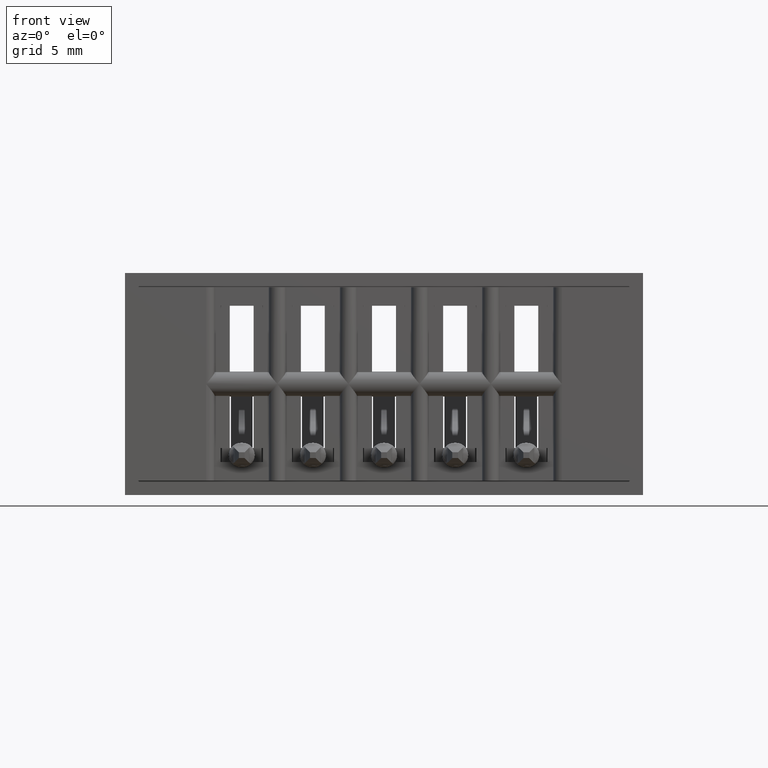
[diagram: clean part render]
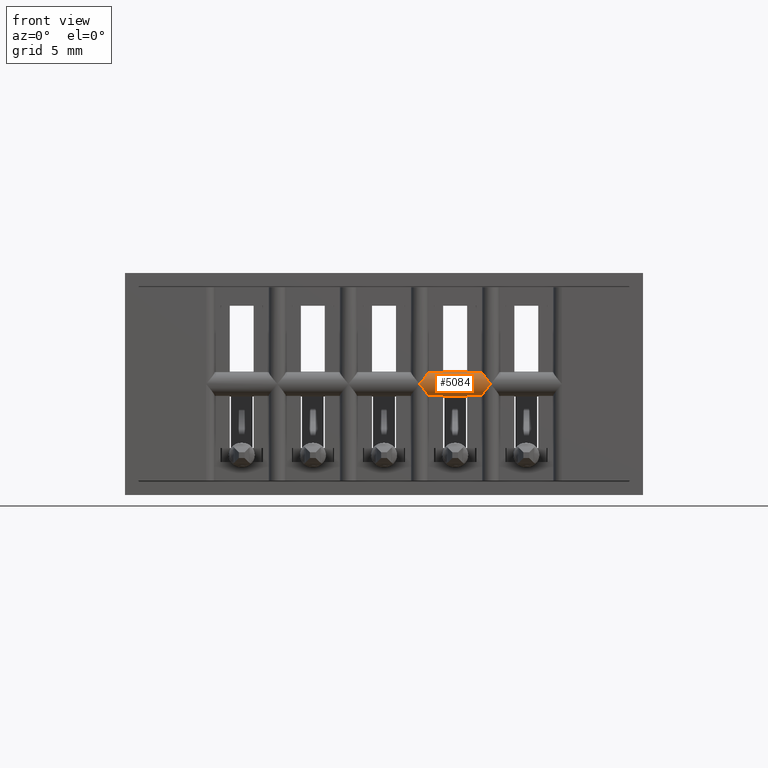
[diagram: same view with one face highlighted and labeled with its STEP entity id]
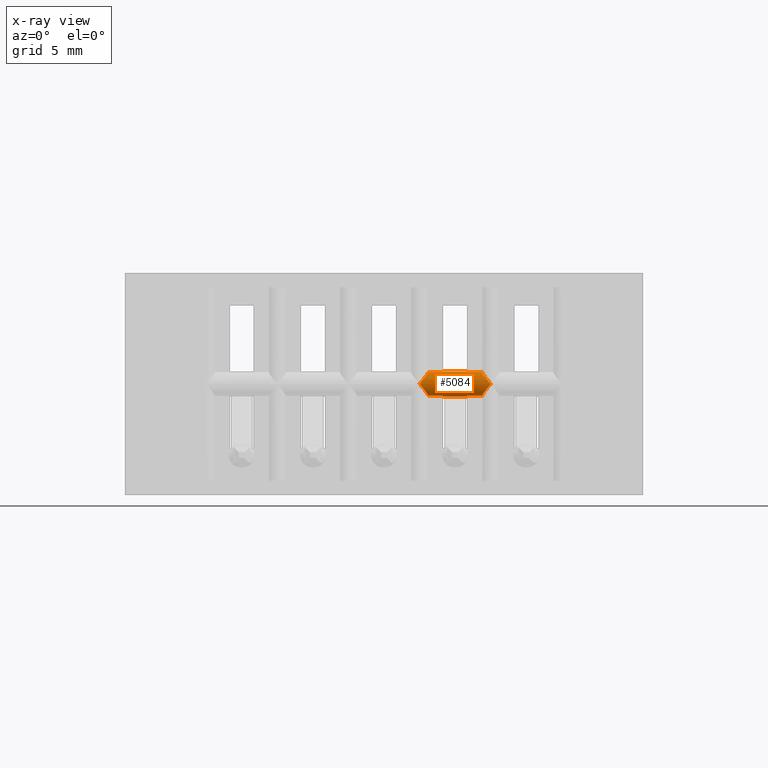
[diagram: x-ray of the same camera — body ghosted, the highlighted face saturated]
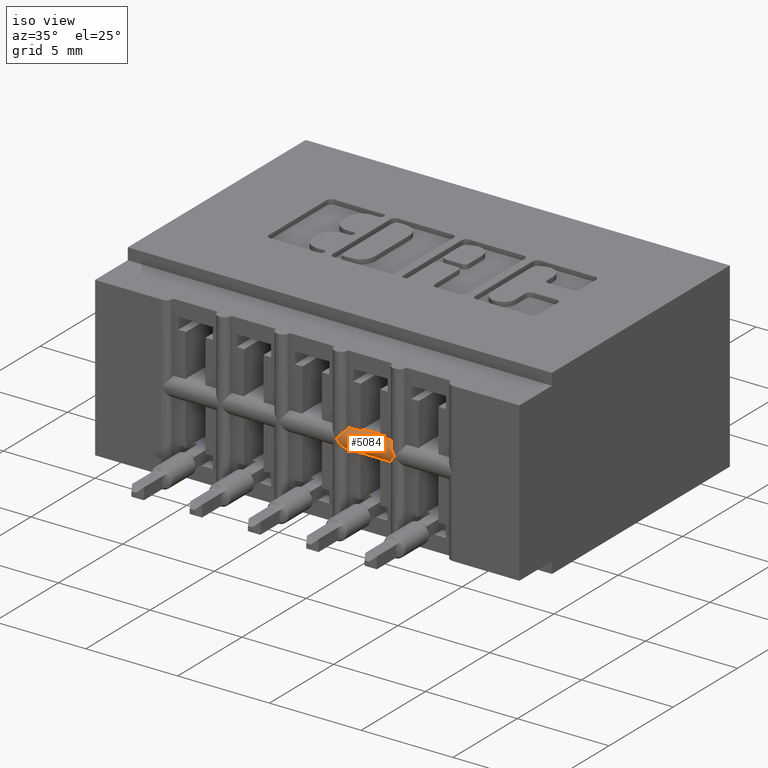
[diagram: same view with one face highlighted and labeled with its STEP entity id]
A machine part, front view. The second image highlights one B-rep face of the part: STEP entity #5084.
The next image is the same camera in x-ray: the body ghosted, the highlighted face saturated — about 0% of this face is hidden behind the body in this view.
A second angle (iso view) of the same face is appended — the face is thin or edge-on in the first view.
In plain terms, the highlighted cylindrical surface (edge-blend (fillet) strip) has radius 0.5588 mm, axis along (1, 0, -0).
Its self-contained STEP definition (entity closure, byte-faithful):
#62 = ORIENTED_EDGE ( 'NONE', *, *, #3000, .F. ) ;
#124 = VECTOR ( 'NONE', #3854, 39.37007874015748143 ) ;
#187 = CARTESIAN_POINT ( 'NONE',  ( 0.6391399462884576055, -1.365590519293842513E-17, -0.1909307627898295390 ) ) ;
#196 = VECTOR ( 'NONE', #11174, 39.37007874015748143 ) ;
#229 = CARTESIAN_POINT ( 'NONE',  ( -19685.03937007874265, 0.01499999999999989536, -0.2158566536100716693 ) ) ;
#338 = CARTESIAN_POINT ( 'NONE',  ( 0.6009999999999996456, 0.01499999999999997169, -0.2158566536146137582 ) ) ;
#613 = LINE ( 'NONE', #4825, #124 ) ;
#622 = ORIENTED_EDGE ( 'NONE', *, *, #10145, .F. ) ;
#623 = VERTEX_POINT ( 'NONE', #4096 ) ;
#635 = CARTESIAN_POINT ( 'NONE',  ( 0.5208739981909346062, -1.087136774822448878E-17, -0.1990861248552253659 ) ) ;
#739 = DIRECTION ( 'NONE',  ( 0.0000000000000000000, 0.0000000000000000000, -1.000000000000000000 ) ) ;
#949 = VERTEX_POINT ( 'NONE', #3023 ) ;
#1064 = LINE ( 'NONE', #4118, #8375 ) ;
#1145 = CARTESIAN_POINT ( 'NONE',  ( 0.5324999999999997513, 0.01499999999999997169, -0.2158566536146137582 ) ) ;
#1459 = CARTESIAN_POINT ( 'NONE',  ( 0.6274999999999996136, 0.01499999999999997516, -0.1741433463853853669 ) ) ;
#1525 = LINE ( 'NONE', #2752, #10889 ) ;
#1926 = B_SPLINE_CURVE_WITH_KNOTS ( 'NONE', 3,
 ( #5575, #11595, #3634, #3820, #7721, #3693, #11721, #7785 ),
 .UNSPECIFIED., .F., .F.,
 ( 4, 2, 2, 4 ),
 ( 5.421010862427522170E-20, 0.0002018944217550984444, 0.0004037888435101967804, 0.0008075776870204009333 ),
 .UNSPECIFIED. ) ;
#2587 = B_SPLINE_CURVE_WITH_KNOTS ( 'NONE', 3,
 ( #7715, #5700, #8675, #9585, #11649, #2773, #635, #2836 ),
 .UNSPECIFIED., .F., .F.,
 ( 4, 2, 2, 4 ),
 ( 2.168404344971008627E-19, 0.0002018944217551003689, 0.0004037888435102004667, 0.0008075776870204016923 ),
 .UNSPECIFIED. ) ;
#2752 = CARTESIAN_POINT ( 'NONE',  ( -19685.03937007874265, 0.02200000000000000566, -0.2169999999954574932 ) ) ;
#2773 = CARTESIAN_POINT ( 'NONE',  ( 0.5242933058219477749, 0.001112354947348564689, -0.2032114395158498843 ) ) ;
#2836 = CARTESIAN_POINT ( 'NONE',  ( 0.5174999999999996270, -1.387266812124265831E-17, -0.1949999999999995626 ) ) ;
#2860 = EDGE_LOOP ( 'NONE', ( #622, #4071, #7908, #11899, #2908, #5432, #10127, #3291, #8953, #7442, #8496, #8431, #62, #11402 ) ) ;
#2908 = ORIENTED_EDGE ( 'NONE', *, *, #8570, .T. ) ;
#2926 = CARTESIAN_POINT ( 'NONE',  ( 0.5318510372071357795, 0.01013332474575916360, -0.1763116530175211083 ) ) ;
#2980 = CARTESIAN_POINT ( 'NONE',  ( 0.6424999999999996270, -1.387266755345461223E-17, -0.1949999999999995348 ) ) ;
#3000 = EDGE_CURVE ( 'NONE', #5321, #4056, #11452, .T. ) ;
#3003 = B_SPLINE_CURVE_WITH_KNOTS ( 'NONE', 3,
 ( #10503, #4607, #4671, #8625, #12553, #2926, #4746, #6819 ),
 .UNSPECIFIED., .F., .F.,
 ( 4, 2, 2, 4 ),
 ( -4.727805137954342886E-06, 0.0003973922096147032459, 0.0005984522169910320988, 0.0007995122243673608974 ),
 .UNSPECIFIED. ) ;
#3012 = CIRCLE ( 'NONE', #11278, 0.02199999999999999872 ) ;
#3023 = CARTESIAN_POINT ( 'NONE',  ( 0.5589999999994517133, 0.02199999999999999872, -0.1729999999999995708 ) ) ;
#3147 = DIRECTION ( 'NONE',  ( -1.000000000000000000, -0.0000000000000000000, 2.307304048702924629E-16 ) ) ;
#3171 = DIRECTION ( 'NONE',  ( -1.000000000000000000, -0.0000000000000000000, 2.307304048702924629E-16 ) ) ;
#3256 = EDGE_CURVE ( 'NONE', #3375, #4652, #11533, .T. ) ;
#3278 = LINE ( 'NONE', #229, #196 ) ;
#3291 = ORIENTED_EDGE ( 'NONE', *, *, #6609, .F. ) ;
#3375 = VERTEX_POINT ( 'NONE', #10368 ) ;
#3464 = EDGE_CURVE ( 'NONE', #3569, #6932, #2587, .T. ) ;
#3506 = CARTESIAN_POINT ( 'NONE',  ( -19685.03937007874265, 0.02200000000000000566, -0.1949999999954574736 ) ) ;
#3569 = VERTEX_POINT ( 'NONE', #1145 ) ;
#3634 = CARTESIAN_POINT ( 'NONE',  ( 0.6281489313902629545, 0.01013343672870411702, -0.2136884110686218807 ) ) ;
#3693 = CARTESIAN_POINT ( 'NONE',  ( 0.6357066941780518121, 0.001112354947348557751, -0.2032114395158498565 ) ) ;
#3820 = CARTESIAN_POINT ( 'NONE',  ( 0.6300974558600919151, 0.006292904779862438722, -0.2105999740989204227 ) ) ;
#3854 = DIRECTION ( 'NONE',  ( 1.000000000000000000, 0.0000000000000000000, -2.307304048702924629E-16 ) ) ;
#3911 = DIRECTION ( 'NONE',  ( -1.000000000000000000, 4.930380657631322689E-32, 2.385081683068867604E-16 ) ) ;
#4012 = LINE ( 'NONE', #4142, #9261 ) ;
#4056 = VERTEX_POINT ( 'NONE', #10012 ) ;
#4071 = ORIENTED_EDGE ( 'NONE', *, *, #4084, .T. ) ;
#4083 = CARTESIAN_POINT ( 'NONE',  ( 0.6274999999999999467, 0.01244419070630513671, -0.1750011381187307480 ) ) ;
#4084 = EDGE_CURVE ( 'NONE', #11591, #10163, #1064, .T. ) ;
#4096 = CARTESIAN_POINT ( 'NONE',  ( 0.5589999999994517133, 0.01499999999999997169, -0.2158566536146137582 ) ) ;
#4118 = CARTESIAN_POINT ( 'NONE',  ( -19685.03937007874265, 0.01499999999999987801, -0.1741433463808433058 ) ) ;
#4142 = CARTESIAN_POINT ( 'NONE',  ( 19685.03937007874265, 0.01499999999999989536, -0.2158566536191555418 ) ) ;
#4151 = CARTESIAN_POINT ( 'NONE',  ( 0.6357070029929009491, 0.001112184625638628580, -0.1867889451262268463 ) ) ;
#4211 = CARTESIAN_POINT ( 'NONE',  ( 0.6300975673214408435, 0.006292735182351931120, -0.1794001882551290727 ) ) ;
#4349 = CIRCLE ( 'NONE', #8078, 0.02199999999999999872 ) ;
#4516 = DIRECTION ( 'NONE',  ( -1.000000000000000000, 4.930380657631322689E-32, 2.385081683068867604E-16 ) ) ;
#4531 = LINE ( 'NONE', #11457, #9583 ) ;
#4607 = CARTESIAN_POINT ( 'NONE',  ( 0.5208600537115398721, -1.365590519293842205E-17, -0.1909307627898279291 ) ) ;
#4652 = VERTEX_POINT ( 'NONE', #1459 ) ;
#4671 = CARTESIAN_POINT ( 'NONE',  ( 0.5242929970070983048, 0.001112184625638621858, -0.1867889451262268186 ) ) ;
#4746 = CARTESIAN_POINT ( 'NONE',  ( 0.5324999999999996403, 0.01244419070630513671, -0.1750011381187306925 ) ) ;
#4825 = CARTESIAN_POINT ( 'NONE',  ( -19685.03937007874265, 0.02199999999999999872, -0.1729999999954574819 ) ) ;
#4863 = CARTESIAN_POINT ( 'NONE',  ( 0.6009999999999996456, 0.02200000000000000566, -0.2169999999999995544 ) ) ;
#5084 = ADVANCED_FACE ( 'NONE', ( #9596 ), #6683, .T. ) ;
#5184 = CARTESIAN_POINT ( 'NONE',  ( 0.6009999999990421893, 0.02199999999999999872, -0.1729999999999995708 ) ) ;
#5321 = VERTEX_POINT ( 'NONE', #5184 ) ;
#5343 = CARTESIAN_POINT ( 'NONE',  ( 0.5589999999999996083, 0.02200000000000000566, -0.2169999999999995544 ) ) ;
#5432 = ORIENTED_EDGE ( 'NONE', *, *, #5944, .F. ) ;
#5498 = EDGE_CURVE ( 'NONE', #4056, #4652, #4531, .T. ) ;
#5575 = CARTESIAN_POINT ( 'NONE',  ( 0.6274999999999996136, 0.01499999999999997169, -0.2158566536146137582 ) ) ;
#5700 = CARTESIAN_POINT ( 'NONE',  ( 0.5324999999999995293, 0.01244425316742273253, -0.2149988828447379485 ) ) ;
#5944 = EDGE_CURVE ( 'NONE', #11508, #623, #10942, .T. ) ;
#6028 = CARTESIAN_POINT ( 'NONE',  ( 0.6314100705385048418, 0.004727827854257418694, -0.1811941087690354113 ) ) ;
#6054 = DIRECTION ( 'NONE',  ( 0.0000000000000000000, 3.492419310082155312E-15, -1.000000000000000000 ) ) ;
#6609 = EDGE_CURVE ( 'NONE', #10303, #7953, #4349, .T. ) ;
#6683 = CYLINDRICAL_SURFACE ( 'NONE', #11240, 0.02199999999999999872 ) ;
#6819 = CARTESIAN_POINT ( 'NONE',  ( 0.5324999999999997513, 0.01499999999999997169, -0.1741433463853853669 ) ) ;
#6837 = CARTESIAN_POINT ( 'NONE',  ( 0.5324999999999997513, 0.01499999999999997169, -0.1741433463853853669 ) ) ;
#6932 = VERTEX_POINT ( 'NONE', #7308 ) ;
#6959 = DIRECTION ( 'NONE',  ( 1.000000000000000000, -4.930380657631322689E-32, -2.385081683068867604E-16 ) ) ;
#7308 = CARTESIAN_POINT ( 'NONE',  ( 0.5174999999999996270, -1.387266812124265831E-17, -0.1949999999999995626 ) ) ;
#7442 = ORIENTED_EDGE ( 'NONE', *, *, #11843, .T. ) ;
#7452 = AXIS2_PLACEMENT_3D ( 'NONE', #10475, #4516, #739 ) ;
#7521 = DIRECTION ( 'NONE',  ( 1.000000000000000000, 0.0000000000000000000, -2.307304048702924629E-16 ) ) ;
#7563 = DIRECTION ( 'NONE',  ( 1.000000000000000000, 0.0000000000000000000, -2.307304048702924629E-16 ) ) ;
#7715 = CARTESIAN_POINT ( 'NONE',  ( 0.5324999999999997513, 0.01499999999999997169, -0.2158566536146137582 ) ) ;
#7721 = CARTESIAN_POINT ( 'NONE',  ( 0.6314099099108575475, 0.004728007783811010237, -0.2088061091034331407 ) ) ;
#7741 = CARTESIAN_POINT ( 'NONE',  ( 0.5589999999994517133, 0.01499999999999997169, -0.1741433463853853669 ) ) ;
#7785 = CARTESIAN_POINT ( 'NONE',  ( 0.6424999999999996270, -1.387266755345461223E-17, -0.1949999999999995348 ) ) ;
#7908 = ORIENTED_EDGE ( 'NONE', *, *, #11942, .F. ) ;
#7953 = VERTEX_POINT ( 'NONE', #4863 ) ;
#8078 = AXIS2_PLACEMENT_3D ( 'NONE', #11146, #6959, #10895 ) ;
#8111 = CARTESIAN_POINT ( 'NONE',  ( 0.6274999999999996136, 0.01499999999999997516, -0.1741433463853853669 ) ) ;
#8375 = VECTOR ( 'NONE', #3147, 39.37007874015748143 ) ;
#8431 = ORIENTED_EDGE ( 'NONE', *, *, #5498, .F. ) ;
#8496 = ORIENTED_EDGE ( 'NONE', *, *, #3256, .T. ) ;
#8570 = EDGE_CURVE ( 'NONE', #3569, #623, #3278, .T. ) ;
#8625 = CARTESIAN_POINT ( 'NONE',  ( 0.5285899294614945232, 0.004727827854257395275, -0.1811941087690354113 ) ) ;
#8675 = CARTESIAN_POINT ( 'NONE',  ( 0.5318510686097367435, 0.01013343672870415171, -0.2136884110686218807 ) ) ;
#8781 = CARTESIAN_POINT ( 'NONE',  ( 0.5589999999994517133, 0.02200000000000000566, -0.1949999999999995626 ) ) ;
#8953 = ORIENTED_EDGE ( 'NONE', *, *, #12513, .F. ) ;
#9261 = VECTOR ( 'NONE', #3171, 39.37007874015748143 ) ;
#9347 = DIRECTION ( 'NONE',  ( 0.0000000000000000000, 0.0000000000000000000, -1.000000000000000000 ) ) ;
#9536 = DIRECTION ( 'NONE',  ( 1.000000000000000000, 0.0000000000000000000, -2.307304048702924629E-16 ) ) ;
#9583 = VECTOR ( 'NONE', #7521, 39.37007874015748143 ) ;
#9585 = CARTESIAN_POINT ( 'NONE',  ( 0.5299025441399073388, 0.006292904779862461273, -0.2105999740989204783 ) ) ;
#9596 = FACE_OUTER_BOUND ( 'NONE', #2860, .T. ) ;
#9777 = VERTEX_POINT ( 'NONE', #12331 ) ;
#9977 = CARTESIAN_POINT ( 'NONE',  ( 0.6281489627928640296, 0.01013332474575914452, -0.1763116530175211638 ) ) ;
#10012 = CARTESIAN_POINT ( 'NONE',  ( 0.6009999999999996456, 0.01499999999999997169, -0.1741433463853853669 ) ) ;
#10127 = ORIENTED_EDGE ( 'NONE', *, *, #11140, .T. ) ;
#10145 = EDGE_CURVE ( 'NONE', #11591, #949, #3012, .T. ) ;
#10163 = VERTEX_POINT ( 'NONE', #6837 ) ;
#10303 = VERTEX_POINT ( 'NONE', #338 ) ;
#10368 = CARTESIAN_POINT ( 'NONE',  ( 0.6424999999999996270, -1.387266755345461223E-17, -0.1949999999999995348 ) ) ;
#10475 = CARTESIAN_POINT ( 'NONE',  ( 0.5589999999994517133, 0.02200000000000000566, -0.1949999999999995626 ) ) ;
#10503 = CARTESIAN_POINT ( 'NONE',  ( 0.5174999999999996270, -1.387266812124265831E-17, -0.1949999999999995626 ) ) ;
#10623 = AXIS2_PLACEMENT_3D ( 'NONE', #11477, #11410, #9347 ) ;
#10628 = DIRECTION ( 'NONE',  ( 0.0000000000000000000, 0.0000000000000000000, -1.000000000000000000 ) ) ;
#10889 = VECTOR ( 'NONE', #7563, 39.37007874015748143 ) ;
#10895 = DIRECTION ( 'NONE',  ( 0.0000000000000000000, 0.0000000000000000000, -1.000000000000000000 ) ) ;
#10942 = CIRCLE ( 'NONE', #7452, 0.02199999999999999872 ) ;
#11140 = EDGE_CURVE ( 'NONE', #11508, #7953, #1525, .T. ) ;
#11146 = CARTESIAN_POINT ( 'NONE',  ( 0.6009999999990421893, 0.02200000000000000566, -0.1949999999999995626 ) ) ;
#11174 = DIRECTION ( 'NONE',  ( 1.000000000000000000, 0.0000000000000000000, -2.307304048702924629E-16 ) ) ;
#11232 = EDGE_CURVE ( 'NONE', #949, #5321, #613, .T. ) ;
#11240 = AXIS2_PLACEMENT_3D ( 'NONE', #3506, #9536, #10628 ) ;
#11278 = AXIS2_PLACEMENT_3D ( 'NONE', #8781, #3911, #6054 ) ;
#11402 = ORIENTED_EDGE ( 'NONE', *, *, #11232, .F. ) ;
#11410 = DIRECTION ( 'NONE',  ( 1.000000000000000000, -4.930380657631322689E-32, -2.385081683068867604E-16 ) ) ;
#11452 = CIRCLE ( 'NONE', #10623, 0.02199999999999999872 ) ;
#11457 = CARTESIAN_POINT ( 'NONE',  ( 19685.03937007874265, 0.01499999999999987801, -0.1741433463899271783 ) ) ;
#11477 = CARTESIAN_POINT ( 'NONE',  ( 0.6009999999990421893, 0.02200000000000000566, -0.1949999999999995626 ) ) ;
#11508 = VERTEX_POINT ( 'NONE', #5343 ) ;
#11533 = B_SPLINE_CURVE_WITH_KNOTS ( 'NONE', 3,
 ( #2980, #187, #4151, #6028, #4211, #9977, #4083, #8111 ),
 .UNSPECIFIED., .F., .F.,
 ( 4, 2, 2, 4 ),
 ( -4.727805137951667956E-06, 0.0003973922096147033001, 0.0005984522169910333998, 0.0007995122243673637163 ),
 .UNSPECIFIED. ) ;
#11591 = VERTEX_POINT ( 'NONE', #7741 ) ;
#11595 = CARTESIAN_POINT ( 'NONE',  ( 0.6274999999999996136, 0.01244425316742273600, -0.2149988828447379763 ) ) ;
#11649 = CARTESIAN_POINT ( 'NONE',  ( 0.5285900900891418175, 0.004728007783811031053, -0.2088061091034332517 ) ) ;
#11721 = CARTESIAN_POINT ( 'NONE',  ( 0.6391260018090532125, -1.597357408404763810E-17, -0.1990861248552154850 ) ) ;
#11843 = EDGE_CURVE ( 'NONE', #9777, #3375, #1926, .T. ) ;
#11899 = ORIENTED_EDGE ( 'NONE', *, *, #3464, .F. ) ;
#11942 = EDGE_CURVE ( 'NONE', #6932, #10163, #3003, .T. ) ;
#12331 = CARTESIAN_POINT ( 'NONE',  ( 0.6274999999999996136, 0.01499999999999997169, -0.2158566536146137582 ) ) ;
#12513 = EDGE_CURVE ( 'NONE', #9777, #10303, #4012, .T. ) ;
#12553 = CARTESIAN_POINT ( 'NONE',  ( 0.5299024326785585215, 0.006292735182351945865, -0.1794001882551291005 ) ) ;